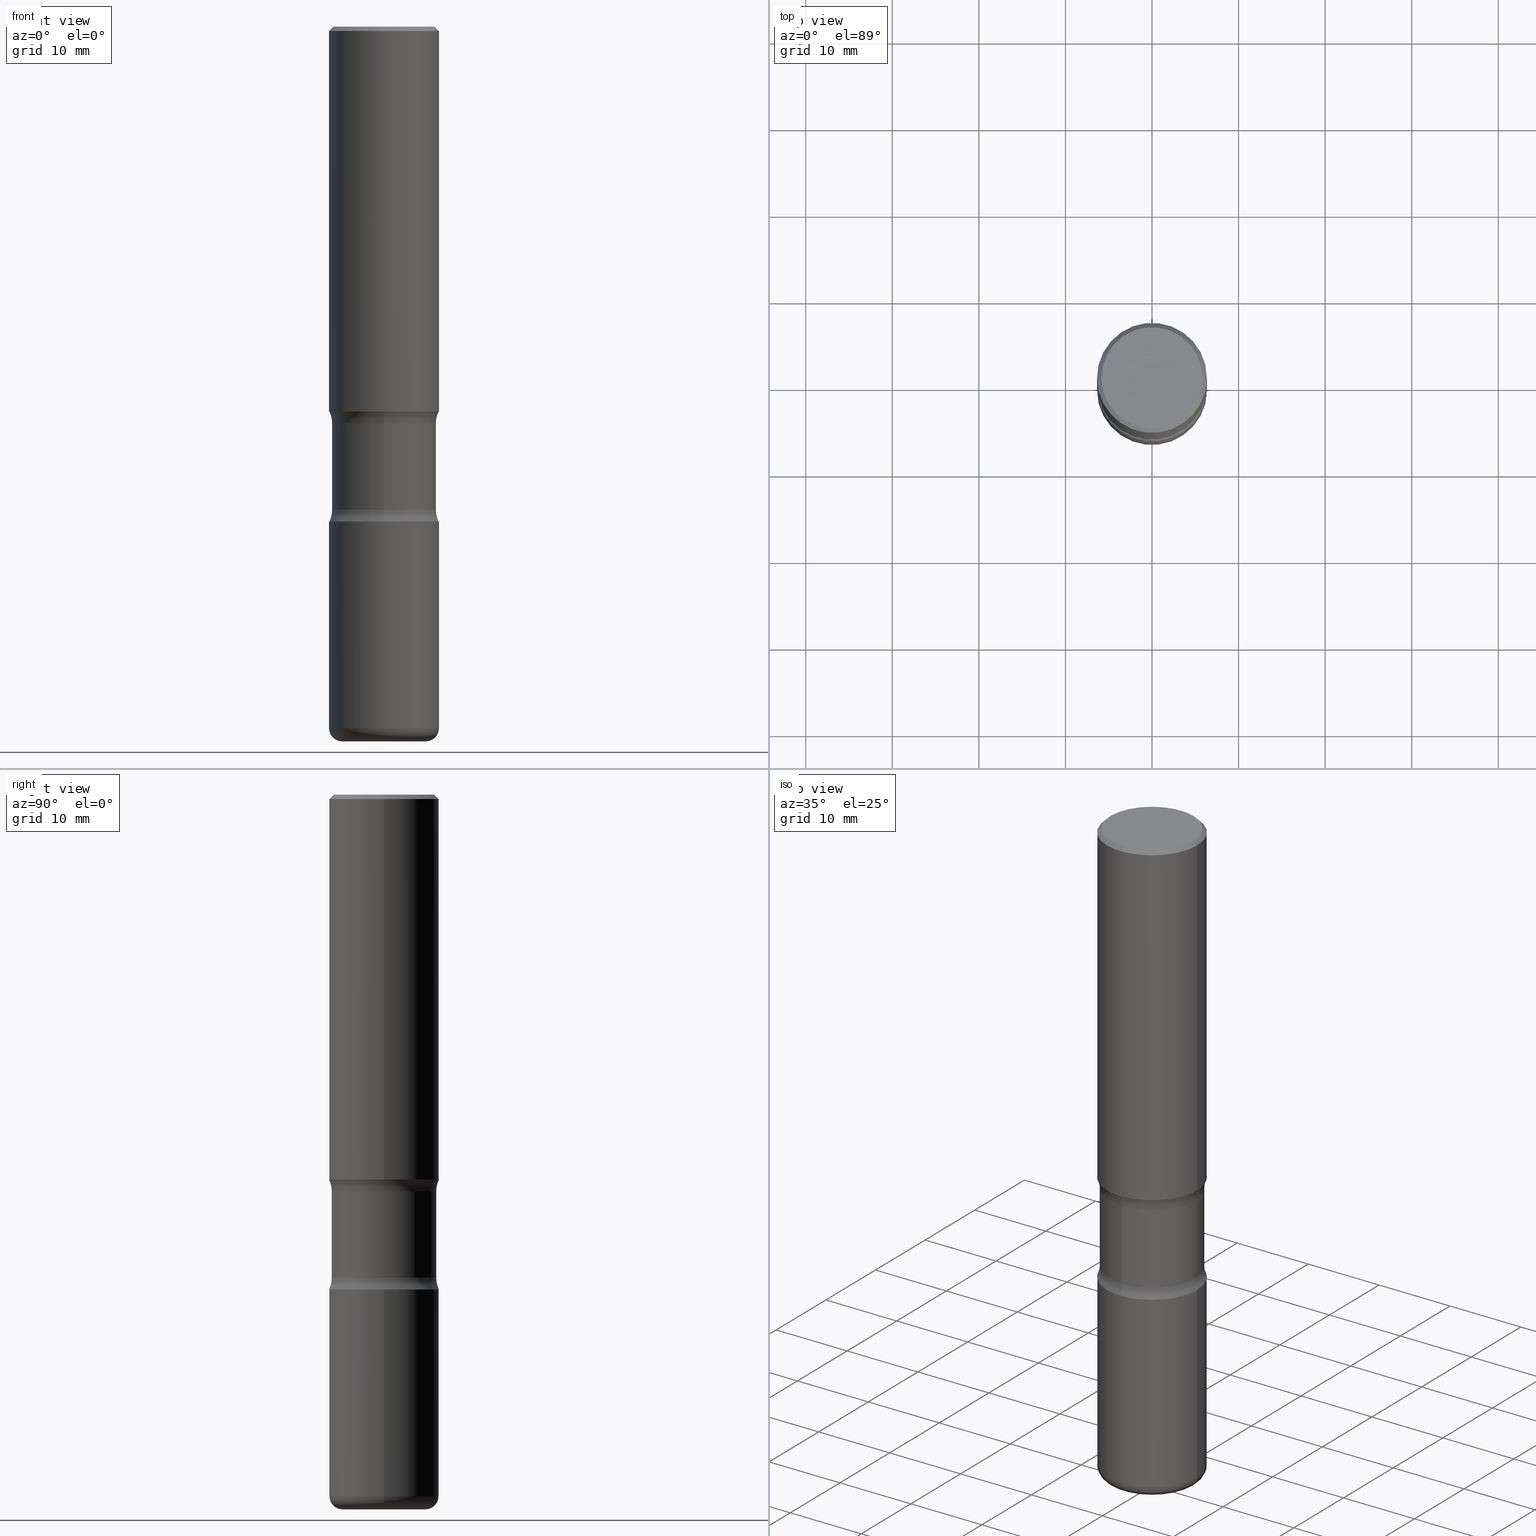
[diagram: canonical four-view strip — front | top / right | iso, engineering-drawing reading convention]
A machine part, canonical four-view strip (front | top / right | iso — engineering-drawing reading convention). The complete STEP part file that produces these views, byte-faithful:
ISO-10303-21;
HEADER;
FILE_DESCRIPTION (( 'STEP AP203' ),
    '1' );
FILE_NAME ('34101.STEP',
    '2024-03-01T23:01:16',
    ( '' ),
    ( '' ),
    'SwSTEP 2.0',
    'SolidWorks 2023',
    '' );
FILE_SCHEMA (( 'CONFIG_CONTROL_DESIGN' ));
ENDSEC;

DATA;
#1 = ORIENTED_EDGE ( 'NONE', *, *, #403, .F. ) ;
#2 = DATE_TIME_ROLE ( 'classification_date' ) ;
#3 = EDGE_CURVE ( 'NONE', #232, #192, #333, .T. ) ;
#4 = AXIS2_PLACEMENT_3D ( 'NONE', #109, #69, #482 ) ;
#5 = CIRCLE ( 'NONE', #286, 0.2300000000000004818 ) ;
#6 = ADVANCED_FACE ( 'NONE', ( #40 ), #160, .T. ) ;
#7 = EDGE_CURVE ( 'NONE', #17, #112, #257, .T. ) ;
#8 = CIRCLE ( 'NONE', #272, 0.2500000000000003886 ) ;
#9 = ORIENTED_EDGE ( 'NONE', *, *, #330, .F. ) ;
#10 = DIRECTION ( 'NONE',  ( 2.269921404058617848E-29, -3.742875210225950140E-15, -1.000000000000000000 ) ) ;
#11 = ORIENTED_EDGE ( 'NONE', *, *, #552, .F. ) ;
#12 = ORIENTED_EDGE ( 'NONE', *, *, #208, .T. ) ;
#13 = FACE_OUTER_BOUND ( 'NONE', #142, .T. ) ;
#14 = ORIENTED_EDGE ( 'NONE', *, *, #7, .T. ) ;
#15 = ORIENTED_EDGE ( 'NONE', *, *, #42, .T. ) ;
#16 = CARTESIAN_POINT ( 'NONE',  ( 1.658453635950563680E-15, 0.2374999999999881095, -3.250000000000002220 ) ) ;
#17 = VERTEX_POINT ( 'NONE', #242 ) ;
#18 = ORIENTED_EDGE ( 'NONE', *, *, #467, .T. ) ;
#19 = AXIS2_PLACEMENT_3D ( 'NONE', #542, #196, #168 ) ;
#20 = AXIS2_PLACEMENT_3D ( 'NONE', #156, #326, #283 ) ;
#21 = CC_DESIGN_DATE_AND_TIME_ASSIGNMENT ( #515, #2, ( #181 ) ) ;
#22 = DIRECTION ( 'NONE',  ( -2.445468806185136597E-29, 3.491481338843145583E-15, 1.000000000000000000 ) ) ;
#23 = ORIENTED_EDGE ( 'NONE', *, *, #557, .F. ) ;
#24 = CARTESIAN_POINT ( 'NONE',  ( 0.2500000000000005551, -1.745740669421570622E-15, 1.219044193948986471E-29 ) ) ;
#25 = EDGE_CURVE ( 'NONE', #81, #56, #500, .T. ) ;
#26 = DIRECTION ( 'NONE',  ( 6.982962677686266711E-15, 1.000000000000000000, -3.450755360418023049E-15 ) ) ;
#27 = COORDINATED_UNIVERSAL_TIME_OFFSET ( 5, 0, .BEHIND. ) ;
#28 = DIRECTION ( 'NONE',  ( 0.7071067811865464625, -7.319954787623252890E-15, -0.7071067811865485719 ) ) ;
#29 = MANIFOLD_SOLID_BREP ( 'Body-Move/Copy2[1]', #95 ) ;
#30 = EDGE_CURVE ( 'NONE', #112, #68, #37, .T. ) ;
#31 = CARTESIAN_POINT ( 'NONE',  ( 4.367344111887250941E-29, -5.984395407284106534E-15, -1.750000000000001332 ) ) ;
#32 = VECTOR ( 'NONE', #291, 39.37007874015748143 ) ;
#33 = CALENDAR_DATE ( 2024, 1, 3 ) ;
#34 = AXIS2_PLACEMENT_3D ( 'NONE', #461, #419, #176 ) ;
#35 = DIRECTION ( 'NONE',  ( 1.000000000000000000, -6.982962677686268288E-15, 4.883557194083112901E-29 ) ) ;
#36 = ORIENTED_EDGE ( 'NONE', *, *, #363, .F. ) ;
#37 = LINE ( 'NONE', #86, #217 ) ;
#38 = DATE_AND_TIME ( #33, #383 ) ;
#39 = DIRECTION ( 'NONE',  ( 1.000000000000000000, -6.982962677686267499E-15, 0.000000000000000000 ) ) ;
#40 = FACE_OUTER_BOUND ( 'NONE', #365, .T. ) ;
#41 = CALENDAR_DATE ( 2024, 1, 3 ) ;
#42 = EDGE_CURVE ( 'NONE', #402, #438, #225, .T. ) ;
#43 = CARTESIAN_POINT ( 'NONE',  ( 4.890937612370273159E-31, -6.982962677686291609E-17, -0.02000000000000000042 ) ) ;
#44 =( NAMED_UNIT ( * ) SI_UNIT ( $, .STERADIAN. ) SOLID_ANGLE_UNIT ( ) );
#45 = AXIS2_PLACEMENT_3D ( 'NONE', #413, #342, #293 ) ;
#46 = DIRECTION ( 'NONE',  ( -2.445468806185136597E-29, 3.491481338843145583E-15, 1.000000000000000000 ) ) ;
#47 = CONICAL_SURFACE ( 'NONE', #473, 0.2500000000000003886, 0.7853981633974468357 ) ;
#48 = ORIENTED_EDGE ( 'NONE', *, *, #348, .T. ) ;
#49 = EDGE_LOOP ( 'NONE', ( #391, #11, #188, #442 ) ) ;
#50 = CC_DESIGN_PERSON_AND_ORGANIZATION_ASSIGNMENT ( #505, #501, ( #170 ) ) ;
#51 = ADVANCED_FACE ( 'NONE', ( #204 ), #411, .T. ) ;
#52 = AXIS2_PLACEMENT_3D ( 'NONE', #250, #165, #507 ) ;
#53 = EDGE_CURVE ( 'NONE', #321, #106, #434, .T. ) ;
#54 = EDGE_CURVE ( 'NONE', #93, #102, #199, .T. ) ;
#55 = ORIENTED_EDGE ( 'NONE', *, *, #114, .F. ) ;
#56 = VERTEX_POINT ( 'NONE', #496 ) ;
#57 = FACE_OUTER_BOUND ( 'NONE', #444, .T. ) ;
#58 = CARTESIAN_POINT ( 'NONE',  ( 4.279570410823991847E-29, -6.110092342975509404E-15, -1.750000000000001332 ) ) ;
#59 = AXIS2_PLACEMENT_3D ( 'NONE', #479, #395, #364 ) ;
#60 = LOCAL_TIME ( 18, 1, 16.00000000000000000, #216 ) ;
#61 = ORIENTED_EDGE ( 'NONE', *, *, #557, .T. ) ;
#62 = DIRECTION ( 'NONE',  ( 2.269921404058617848E-29, -3.742875210225950140E-15, -1.000000000000000000 ) ) ;
#63 = ORIENTED_EDGE ( 'NONE', *, *, #552, .T. ) ;
#64 = EDGE_LOOP ( 'NONE', ( #15, #517 ) ) ;
#65 = CARTESIAN_POINT ( 'NONE',  ( 0.1900000000000004186, -1.267407726000061762E-14, -3.250000000000000000 ) ) ;
#66 = EDGE_LOOP ( 'NONE', ( #390, #483 ) ) ;
#67 = CC_DESIGN_DATE_AND_TIME_ASSIGNMENT ( #38, #205, ( #170 ) ) ;
#68 = VERTEX_POINT ( 'NONE', #554 ) ;
#69 = DIRECTION ( 'NONE',  ( -2.445468806185136597E-29, 3.491481338843145583E-15, 1.000000000000000000 ) ) ;
#70 = ORIENTED_EDGE ( 'NONE', *, *, #138, .T. ) ;
#71 = AXIS2_PLACEMENT_3D ( 'NONE', #172, #131, #553 ) ;
#72 = CC_DESIGN_PERSON_AND_ORGANIZATION_ASSIGNMENT ( #288, #166, ( #491 ) ) ;
#73 = CARTESIAN_POINT ( 'NONE',  ( 3.785429481638292293E-29, -1.031449620669491633E-14, -2.250000000000000888 ) ) ;
#74 = DIRECTION ( 'NONE',  ( 6.860497997771532351E-15, 1.000000000000000000, 0.000000000000000000 ) ) ;
#75 = APPLICATION_PROTOCOL_DEFINITION ( 'international standard', 'config_control_design', 1994, #265 ) ;
#76 = ADVANCED_FACE ( 'NONE', ( #335 ), #248, .F. ) ;
#77 = CARTESIAN_POINT ( 'NONE',  ( 0.1900000000000004186, -1.246458837967002773E-14, -3.189999999999999947 ) ) ;
#78 = DIRECTION ( 'NONE',  ( 2.269921404058617848E-29, -3.742875210225950140E-15, -1.000000000000000000 ) ) ;
#79 = CALENDAR_DATE ( 2024, 1, 3 ) ;
#80 = CARTESIAN_POINT ( 'NONE',  ( 5.502304813916559585E-29, -7.855833012397081604E-15, -2.250000000000001332 ) ) ;
#81 = VERTEX_POINT ( 'NONE', #408 ) ;
#82 = DIRECTION ( 'NONE',  ( 6.982962677686265922E-15, 1.000000000000000000, -3.742875210225950140E-15 ) ) ;
#83 = CIRCLE ( 'NONE', #150, 0.1900000000000004186 ) ;
#84 = COORDINATED_UNIVERSAL_TIME_OFFSET ( 5, 0, .BEHIND. ) ;
#85 = PLANE ( 'NONE',  #71 ) ;
#86 = CARTESIAN_POINT ( 'NONE',  ( -1.629368274470659150E-15, -0.2375000000000113409, -3.250000000000000000 ) ) ;
#87 = EDGE_CURVE ( 'NONE', #106, #321, #392, .T. ) ;
#88 = COORDINATED_UNIVERSAL_TIME_OFFSET ( 5, 0, .BEHIND. ) ;
#89 = DIRECTION ( 'NONE',  ( -2.445468806185136597E-29, 3.491481338843145583E-15, 1.000000000000000000 ) ) ;
#90 = CARTESIAN_POINT ( 'NONE',  ( -2.486930524192125050E-15, -0.3625000000000075384, -2.195513763205739988 ) ) ;
#91 = CARTESIAN_POINT ( 'NONE',  ( 0.000000000000000000, 0.000000000000000000, 0.000000000000000000 ) ) ;
#92 = CIRCLE ( 'NONE', #251, 0.2500000000000003886 ) ;
#93 = VERTEX_POINT ( 'NONE', #372 ) ;
#94 = PERSON_AND_ORGANIZATION_ROLE ( 'design_supplier' ) ;
#95 = CLOSED_SHELL ( 'NONE', ( #535, #263, #260, #349, #457, #514 ) ) ;
#96 = CIRCLE ( 'NONE', #519, 0.2500000000000003886 ) ;
#97 = ADVANCED_FACE ( 'NONE', ( #453 ), #128, .F. ) ;
#98 = DIRECTION ( 'NONE',  ( 1.000000000000000000, -6.982962677686267499E-15, 4.876176775795935793E-29 ) ) ;
#99 = ORIENTED_EDGE ( 'NONE', *, *, #54, .F. ) ;
#100 = FACE_OUTER_BOUND ( 'NONE', #314, .T. ) ;
#101 = EDGE_LOOP ( 'NONE', ( #18, #439, #9, #424 ) ) ;
#102 = VERTEX_POINT ( 'NONE', #414 ) ;
#103 = LINE ( 'NONE', #187, #212 ) ;
#104 = AXIS2_PLACEMENT_3D ( 'NONE', #298, #294, #82 ) ;
#105 = CIRCLE ( 'NONE', #462, 0.2500000000000003886 ) ;
#106 = VERTEX_POINT ( 'NONE', #254 ) ;
#107 = VERTEX_POINT ( 'NONE', #551 ) ;
#108 = APPROVAL ( #465, 'UNSPECIFIED' ) ;
#109 = CARTESIAN_POINT ( 'NONE',  ( 4.279570410823991847E-29, -6.110092342975509404E-15, -1.750000000000001332 ) ) ;
#110 = EDGE_CURVE ( 'NONE', #56, #115, #359, .T. ) ;
#111 = VERTEX_POINT ( 'NONE', #315 ) ;
#112 = VERTEX_POINT ( 'NONE', #397 ) ;
#113 = CARTESIAN_POINT ( 'NONE',  ( -2.486930524192133333E-15, -0.3625000000000058731, -1.804486236794259568 ) ) ;
#114 = EDGE_CURVE ( 'NONE', #192, #232, #178, .T. ) ;
#115 = VERTEX_POINT ( 'NONE', #328 ) ;
#116 = FACE_OUTER_BOUND ( 'NONE', #152, .T. ) ;
#117 = DIRECTION ( 'NONE',  ( 2.438088387897960049E-29, -3.491481338843145188E-15, -1.000000000000000000 ) ) ;
#118 = CARTESIAN_POINT ( 'NONE',  ( 7.772226217975179114E-29, -1.159870822262303332E-14, -3.250000000000001332 ) ) ;
#119 = AXIS2_PLACEMENT_3D ( 'NONE', #469, #456, #303 ) ;
#120 = APPLICATION_PROTOCOL_DEFINITION ( 'international standard', 'config_control_design', 1994, #474 ) ;
#121 = CARTESIAN_POINT ( 'NONE',  ( 7.801045491730585789E-29, -1.113782547090963453E-14, -3.189999999999999947 ) ) ;
#122 = DIRECTION ( 'NONE',  ( 6.982962677686265133E-15, 1.000000000000000000, -3.278217592397113101E-15 ) ) ;
#123 = DIRECTION ( 'NONE',  ( -0.7071067811865464625, 2.468850131082245622E-15, -0.7071067811865485719 ) ) ;
#124 = CARTESIAN_POINT ( 'NONE',  ( 4.367344111887250941E-29, -5.984395407284106534E-15, -1.750000000000001332 ) ) ;
#125 = DIRECTION ( 'NONE',  ( 1.000000000000000000, 0.000000000000000000, 0.000000000000000000 ) ) ;
#126 = FACE_OUTER_BOUND ( 'NONE', #396, .T. ) ;
#127 = ADVANCED_FACE ( 'NONE', ( #530 ), #353, .F. ) ;
#128 = PLANE ( 'NONE',  #104 ) ;
#129 = DIRECTION ( 'NONE',  ( -2.445468806185136597E-29, 3.491481338843145583E-15, 1.000000000000000000 ) ) ;
#130 = AXIS2_PLACEMENT_3D ( 'NONE', #90, #332, #296 ) ;
#131 = DIRECTION ( 'NONE',  ( 2.438088387897960049E-29, -3.491481338843145188E-15, -1.000000000000000000 ) ) ;
#132 = FACE_OUTER_BOUND ( 'NONE', #101, .T. ) ;
#133 = DIMENSIONAL_EXPONENTS ( 1.000000000000000000, 0.000000000000000000, 0.000000000000000000, 0.000000000000000000, 0.000000000000000000, 0.000000000000000000, 0.000000000000000000 ) ;
#134 = APPROVAL_STATUS ( 'not_yet_approved' ) ;
#135 = EDGE_LOOP ( 'NONE', ( #63, #153 ) ) ;
#136 = SHAPE_DEFINITION_REPRESENTATION ( #183, #336 ) ;
#137 = AXIS2_PLACEMENT_3D ( 'NONE', #200, #158, #504 ) ;
#138 = EDGE_CURVE ( 'NONE', #232, #93, #195, .T. ) ;
#139 = PERSON_AND_ORGANIZATION ( #558, #307 ) ;
#140 = AXIS2_PLACEMENT_3D ( 'NONE', #560, #371, #452 ) ;
#141 = AXIS2_PLACEMENT_3D ( 'NONE', #77, #415, #244 ) ;
#142 = EDGE_LOOP ( 'NONE', ( #55, #316 ) ) ;
#143 = ORIENTED_EDGE ( 'NONE', *, *, #253, .F. ) ;
#144 = UNCERTAINTY_MEASURE_WITH_UNIT (LENGTH_MEASURE( 1.000000000000000082E-05 ), #454, 'distance_accuracy_value', 'NONE');
#145 = DIRECTION ( 'NONE',  ( -2.445468806185136877E-29, 3.491481338843145188E-15, 1.000000000000000000 ) ) ;
#146 = ORIENTED_EDGE ( 'NONE', *, *, #154, .T. ) ;
#147 = ORIENTED_EDGE ( 'NONE', *, *, #87, .T. ) ;
#148 = EDGE_CURVE ( 'NONE', #112, #106, #509, .T. ) ;
#149 = CARTESIAN_POINT ( 'NONE',  ( -0.2500000000000005551, 1.776356839400254409E-15, -1.229733772563729108E-29 ) ) ;
#150 = AXIS2_PLACEMENT_3D ( 'NONE', #189, #22, #536 ) ;
#151 = CIRCLE ( 'NONE', #556, 0.1900000000000004186 ) ;
#152 = EDGE_LOOP ( 'NONE', ( #61, #324 ) ) ;
#153 = ORIENTED_EDGE ( 'NONE', *, *, #463, .T. ) ;
#154 = EDGE_CURVE ( 'NONE', #221, #115, #103, .T. ) ;
#155 = EDGE_LOOP ( 'NONE', ( #235, #275, #367, #355 ) ) ;
#156 = CARTESIAN_POINT ( 'NONE',  ( -0.1900000000000004186, -9.787794272965439823E-15, -3.189999999999999947 ) ) ;
#157 = CARTESIAN_POINT ( 'NONE',  ( 2.100004222806510412E-28, 7.344277184357306354E-15, -3.250000000000000444 ) ) ;
#158 = DIRECTION ( 'NONE',  ( -2.445468806185136597E-29, 3.491481338843145583E-15, 1.000000000000000000 ) ) ;
#159 = DIRECTION ( 'NONE',  ( -2.445468806185136877E-29, 3.491481338843145188E-15, 1.000000000000000000 ) ) ;
#160 = CYLINDRICAL_SURFACE ( 'NONE', #412, 0.2374999999999997113 ) ;
#161 = AXIS2_PLACEMENT_3D ( 'NONE', #416, #378, #184 ) ;
#162 = AXIS2_PLACEMENT_3D ( 'NONE', #43, #210, #389 ) ;
#163 = APPROVAL_DATE_TIME ( #459, #108 ) ;
#164 = DIRECTION ( 'NONE',  ( 1.000000000000000000, -6.982962677686266711E-15, 4.876176775795935232E-29 ) ) ;
#165 = DIRECTION ( 'NONE',  ( 2.269921404058617848E-29, -3.742875210225950140E-15, -1.000000000000000000 ) ) ;
#166 = PERSON_AND_ORGANIZATION_ROLE ( 'design_owner' ) ;
#167 = FACE_OUTER_BOUND ( 'NONE', #135, .T. ) ;
#168 = DIRECTION ( 'NONE',  ( 1.000000000000000000, -6.982962677686267499E-15, 0.000000000000000000 ) ) ;
#169 = APPROVAL_ROLE ( '' ) ;
#170 = PRODUCT_DEFINITION ( 'UNKNOWN', '', #213, #327 ) ;
#171 = EDGE_CURVE ( 'NONE', #229, #68, #317, .T. ) ;
#172 = CARTESIAN_POINT ( 'NONE',  ( 1.606081415867844617E-15, 0.2300000000000004818, -8.115777329141259230E-16 ) ) ;
#173 = DIRECTION ( 'NONE',  ( 6.982962677686265133E-15, 1.000000000000000000, -3.278217592397110735E-15 ) ) ;
#174 = CLOSED_SHELL ( 'NONE', ( #186, #423, #202, #255, #97, #127, #76, #6 ) ) ;
#175 = CYLINDRICAL_SURFACE ( 'NONE', #226, 0.2500000000000003886 ) ;
#176 = DIRECTION ( 'NONE',  ( 6.982962677686265922E-15, 1.000000000000000000, -3.742875210225950140E-15 ) ) ;
#177 = ORIENTED_EDGE ( 'NONE', *, *, #428, .T. ) ;
#178 = CIRCLE ( 'NONE', #4, 0.2500000000000006661 ) ;
#179 = CC_DESIGN_APPROVAL ( #108, ( #170 ) ) ;
#180 = AXIS2_PLACEMENT_3D ( 'NONE', #450, #375, #207 ) ;
#181 = SECURITY_CLASSIFICATION ( '', '', #425 ) ;
#182 = ORIENTED_EDGE ( 'NONE', *, *, #25, .F. ) ;
#183 = PRODUCT_DEFINITION_SHAPE ( 'NONE', 'NONE',  #170 ) ;
#184 = DIRECTION ( 'NONE',  ( 1.000000000000000000, -6.982962677686263555E-15, 0.000000000000000000 ) ) ;
#185 = ORIENTED_EDGE ( 'NONE', *, *, #510, .F. ) ;
#186 = ADVANCED_FACE ( 'NONE', ( #357 ), #360, .T. ) ;
#187 = CARTESIAN_POINT ( 'NONE',  ( 0.2500000000000003886, -1.745740669421569636E-15, 1.219044193948985910E-29 ) ) ;
#188 = ORIENTED_EDGE ( 'NONE', *, *, #267, .T. ) ;
#189 = CARTESIAN_POINT ( 'NONE',  ( 7.947773620101693940E-29, -1.134731435124022443E-14, -3.250000000000000000 ) ) ;
#190 = CIRCLE ( 'NONE', #404, 0.2374999999999995726 ) ;
#191 = VERTEX_POINT ( 'NONE', #241 ) ;
#192 = VERTEX_POINT ( 'NONE', #493 ) ;
#193 = ORIENTED_EDGE ( 'NONE', *, *, #363, .T. ) ;
#194 = DIRECTION ( 'NONE',  ( -1.000000000000000000, 6.982962677686265922E-15, -4.883557194083112340E-29 ) ) ;
#195 = LINE ( 'NONE', #149, #341 ) ;
#196 = DIRECTION ( 'NONE',  ( -2.445468806185136597E-29, 3.491481338843145583E-15, 1.000000000000000000 ) ) ;
#197 = CARTESIAN_POINT ( 'NONE',  ( 0.000000000000000000, 0.000000000000000000, 0.000000000000000000 ) ) ;
#198 = LINE ( 'NONE', #502, #522 ) ;
#199 = CIRCLE ( 'NONE', #137, 0.2500000000000003886 ) ;
#200 = CARTESIAN_POINT ( 'NONE',  ( 4.890937612370273159E-31, -6.982962677686291609E-17, -0.02000000000000000042 ) ) ;
#201 = CIRCLE ( 'NONE', #448, 0.2300000000000004818 ) ;
#202 = ADVANCED_FACE ( 'NONE', ( #407 ), #543, .F. ) ;
#203 = DIRECTION ( 'NONE',  ( 6.982962677686265133E-15, 1.000000000000000000, -3.278217592397110735E-15 ) ) ;
#204 = FACE_OUTER_BOUND ( 'NONE', #269, .T. ) ;
#205 = DATE_TIME_ROLE ( 'creation_date' ) ;
#206 = DIRECTION ( 'NONE',  ( 6.982962677686266711E-15, 1.000000000000000000, -3.450755360418023049E-15 ) ) ;
#207 = DIRECTION ( 'NONE',  ( 1.000000000000000000, -6.982962677686266711E-15, 4.876176775795935232E-29 ) ) ;
#208 = EDGE_CURVE ( 'NONE', #192, #102, #227, .T. ) ;
#209 = DATE_AND_TIME ( #41, #422 ) ;
#210 = DIRECTION ( 'NONE',  ( 2.445468806185136597E-29, -3.491481338843145583E-15, -1.000000000000000000 ) ) ;
#211 = MANIFOLD_SOLID_BREP ( 'Body-Move/Copy2[2]', #447 ) ;
#212 = VECTOR ( 'NONE', #273, 39.37007874015748143 ) ;
#213 = PRODUCT_DEFINITION_FORMATION_WITH_SPECIFIED_SOURCE ( 'ANY', '', #491, .NOT_KNOWN. ) ;
#214 = CARTESIAN_POINT ( 'NONE',  ( 4.491023587013149728E-29, -6.188330592279845103E-15, -1.804486236794261567 ) ) ;
#215 = ORIENTED_EDGE ( 'NONE', *, *, #30, .F. ) ;
#216 = COORDINATED_UNIVERSAL_TIME_OFFSET ( 5, 0, .BEHIND. ) ;
#217 = VECTOR ( 'NONE', #464, 39.37007874015748143 ) ;
#218 = AXIS2_PLACEMENT_3D ( 'NONE', #538, #194, #492 ) ;
#219 = PERSON_AND_ORGANIZATION ( #558, #307 ) ;
#220 = ORIENTED_EDGE ( 'NONE', *, *, #3, .T. ) ;
#221 = VERTEX_POINT ( 'NONE', #366 ) ;
#222 = ORIENTED_EDGE ( 'NONE', *, *, #253, .T. ) ;
#223 = CARTESIAN_POINT ( 'NONE',  ( 4.890937612370273159E-31, -6.982962677686291609E-17, -0.02000000000000000042 ) ) ;
#224 = VECTOR ( 'NONE', #10, 39.37007874015748143 ) ;
#225 = CIRCLE ( 'NONE', #475, 0.2500000000000003886 ) ;
#226 = AXIS2_PLACEMENT_3D ( 'NONE', #197, #300, #468 ) ;
#227 = LINE ( 'NONE', #24, #271 ) ;
#228 = ADVANCED_FACE ( 'NONE', ( #13 ), #319, .F. ) ;
#229 = VERTEX_POINT ( 'NONE', #440 ) ;
#230 = DIRECTION ( 'NONE',  ( 6.982962677686265922E-15, 1.000000000000000000, -4.601007147224027577E-15 ) ) ;
#231 = VERTEX_POINT ( 'NONE', #65 ) ;
#232 = VERTEX_POINT ( 'NONE', #495 ) ;
#233 = DIRECTION ( 'NONE',  ( 1.000000000000000000, -6.860497997771530774E-15, 4.837720192625000670E-29 ) ) ;
#234 = EDGE_LOOP ( 'NONE', ( #503, #264, #23, #401 ) ) ;
#235 = ORIENTED_EDGE ( 'NONE', *, *, #148, .F. ) ;
#236 = DIRECTION ( 'NONE',  ( 6.982962677686265133E-15, 1.000000000000000000, -3.450755360418019105E-15 ) ) ;
#237 = TOROIDAL_SURFACE ( 'NONE', #59, 0.3624999999999997113, 0.1250000000000000278 ) ;
#238 = CONICAL_SURFACE ( 'NONE', #162, 0.2500000000000003886, 0.7853981633974468357 ) ;
#239 = EDGE_LOOP ( 'NONE', ( #361, #528, #147, #433 ) ) ;
#240 = DIRECTION ( 'NONE',  ( 2.438088387897960049E-29, -3.491481338843145188E-15, -1.000000000000000000 ) ) ;
#241 = CARTESIAN_POINT ( 'NONE',  ( -0.2300000000000004818, 1.640996229256275675E-15, -1.707404996041300040E-17 ) ) ;
#242 = CARTESIAN_POINT ( 'NONE',  ( 1.658453635950530153E-15, 0.2374999999999934108, -1.804486236794262233 ) ) ;
#243 = PERSON_AND_ORGANIZATION ( #558, #307 ) ;
#244 = DIRECTION ( 'NONE',  ( 1.000000000000000000, -6.982962677686274599E-15, 0.000000000000000000 ) ) ;
#245 = DIRECTION ( 'NONE',  ( 6.982962677686265922E-15, 1.000000000000000000, -4.601007147224027577E-15 ) ) ;
#246 =( LENGTH_UNIT ( ) NAMED_UNIT ( * ) SI_UNIT ( $, .METRE. ) );
#247 = LINE ( 'NONE', #420, #312 ) ;
#248 = TOROIDAL_SURFACE ( 'NONE', #52, 0.3624999999999998779, 0.1250000000000000555 ) ;
#249 = EDGE_CURVE ( 'NONE', #17, #229, #400, .T. ) ;
#250 = CARTESIAN_POINT ( 'NONE',  ( 5.369060421469781115E-29, -7.665595333406135543E-15, -2.195513763205741320 ) ) ;
#251 = AXIS2_PLACEMENT_3D ( 'NONE', #511, #547, #39 ) ;
#252 = DIRECTION ( 'NONE',  ( -2.445468806185136597E-29, 3.491481338843145583E-15, 1.000000000000000000 ) ) ;
#253 = EDGE_CURVE ( 'NONE', #107, #231, #83, .T. ) ;
#254 = CARTESIAN_POINT ( 'NONE',  ( -1.715124499442841278E-15, -0.2500000000000062172, -1.750000000000000444 ) ) ;
#255 = ADVANCED_FACE ( 'NONE', ( #280 ), #237, .F. ) ;
#256 = CARTESIAN_POINT ( 'NONE',  ( 0.000000000000000000, 0.000000000000000000, 0.000000000000000000 ) ) ;
#257 = CIRCLE ( 'NONE', #471, 0.2374999999999995726 ) ;
#258 = DATE_AND_TIME ( #520, #60 ) ;
#259 = CC_DESIGN_APPROVAL ( #380, ( #181 ) ) ;
#260 = ADVANCED_FACE ( 'NONE', ( #100 ), #443, .T. ) ;
#261 = AXIS2_PLACEMENT_3D ( 'NONE', #256, #89, #164 ) ;
#262 = CIRCLE ( 'NONE', #20, 0.05999999999999994227 ) ;
#263 = ADVANCED_FACE ( 'NONE', ( #132 ), #297, .T. ) ;
#264 = ORIENTED_EDGE ( 'NONE', *, *, #25, .T. ) ;
#265 = APPLICATION_CONTEXT ( 'configuration controlled 3d designs of mechanical parts and assemblies' ) ;
#266 = ORIENTED_EDGE ( 'NONE', *, *, #308, .T. ) ;
#267 = EDGE_CURVE ( 'NONE', #191, #93, #198, .T. ) ;
#268 = DIRECTION ( 'NONE',  ( 2.269921404058617848E-29, -3.742875210225950140E-15, -1.000000000000000000 ) ) ;
#269 = EDGE_LOOP ( 'NONE', ( #489, #220, #12, #99 ) ) ;
#270 = ORIENTED_EDGE ( 'NONE', *, *, #463, .F. ) ;
#271 = VECTOR ( 'NONE', #159, 39.37007874015748143 ) ;
#272 = AXIS2_PLACEMENT_3D ( 'NONE', #80, #381, #203 ) ;
#273 = DIRECTION ( 'NONE',  ( -2.445468806185136877E-29, 3.491481338843145188E-15, 1.000000000000000000 ) ) ;
#274 = ORIENTED_EDGE ( 'NONE', *, *, #267, .F. ) ;
#275 = ORIENTED_EDGE ( 'NONE', *, *, #7, .F. ) ;
#276 = DIRECTION ( 'NONE',  ( -6.982962677686265922E-15, -1.000000000000000000, 3.742875210225950140E-15 ) ) ;
#277 = ADVANCED_FACE ( 'NONE', ( #126 ), #290, .T. ) ;
#278 = EDGE_LOOP ( 'NONE', ( #14, #537, #430, #527 ) ) ;
#279 = ORIENTED_EDGE ( 'NONE', *, *, #431, .T. ) ;
#280 = FACE_OUTER_BOUND ( 'NONE', #155, .T. ) ;
#281 = PRODUCT_RELATED_PRODUCT_CATEGORY ( 'detail', '', ( #491 ) ) ;
#282 = EDGE_LOOP ( 'NONE', ( #185, #222, #279, #399 ) ) ;
#283 = DIRECTION ( 'NONE',  ( -1.000000000000000000, 7.105427357600997914E-15, 0.000000000000000000 ) ) ;
#284 = DIRECTION ( 'NONE',  ( -1.000000000000000000, 6.982962677686265922E-15, -4.876176775795935793E-29 ) ) ;
#285 = CIRCLE ( 'NONE', #45, 0.1250000000000000278 ) ;
#286 = AXIS2_PLACEMENT_3D ( 'NONE', #470, #455, #362 ) ;
#287 = CARTESIAN_POINT ( 'NONE',  ( 5.502304813916559585E-29, -7.855833012397081604E-15, -2.250000000000001332 ) ) ;
#288 = PERSON_AND_ORGANIZATION ( #558, #307 ) ;
#289 = EDGE_CURVE ( 'NONE', #112, #17, #190, .T. ) ;
#290 = CYLINDRICAL_SURFACE ( 'NONE', #261, 0.2500000000000005551 ) ;
#291 = DIRECTION ( 'NONE',  ( -2.445468806185136877E-29, 3.491481338843145188E-15, 1.000000000000000000 ) ) ;
#292 = DIRECTION ( 'NONE',  ( -1.000000000000000000, 6.982962677686267499E-15, 0.000000000000000000 ) ) ;
#293 = DIRECTION ( 'NONE',  ( -6.982962677686265133E-15, -1.000000000000000000, 0.000000000000000000 ) ) ;
#294 = DIRECTION ( 'NONE',  ( 2.269921404058617848E-29, -3.742875210225950140E-15, -1.000000000000000000 ) ) ;
#295 = DIRECTION ( 'NONE',  ( -2.445468806185136597E-29, 3.491481338843145583E-15, 1.000000000000000000 ) ) ;
#296 = DIRECTION ( 'NONE',  ( 6.860497997771530774E-15, 1.000000000000000000, 0.000000000000000000 ) ) ;
#297 = TOROIDAL_SURFACE ( 'NONE', #497, 0.1900000000000004186, 0.05999999999999994227 ) ;
#298 = CARTESIAN_POINT ( 'NONE',  ( 4.279570410823991847E-29, -6.110092342975509404E-15, -1.750000000000001332 ) ) ;
#299 = APPROVAL_PERSON_ORGANIZATION ( #219, #380, #304 ) ;
#300 = DIRECTION ( 'NONE',  ( -2.445468806185136597E-29, 3.491481338843145583E-15, 1.000000000000000000 ) ) ;
#301 = FACE_OUTER_BOUND ( 'NONE', #49, .T. ) ;
#302 = PERSON_AND_ORGANIZATION ( #558, #307 ) ;
#303 = DIRECTION ( 'NONE',  ( 6.982962677686265133E-15, 1.000000000000000000, -3.450755360418019105E-15 ) ) ;
#304 = APPROVAL_ROLE ( '' ) ;
#305 = AXIS2_PLACEMENT_3D ( 'NONE', #539, #62, #236 ) ;
#306 = CC_DESIGN_APPROVAL ( #521, ( #213 ) ) ;
#307 = ORGANIZATION ( 'UNSPECIFIED', 'UNSPECIFIED', '' ) ;
#308 = EDGE_CURVE ( 'NONE', #111, #102, #247, .T. ) ;
#309 = CALENDAR_DATE ( 2024, 1, 3 ) ;
#310 = ADVANCED_FACE ( 'NONE', ( #167 ), #85, .F. ) ;
#311 = PERSON_AND_ORGANIZATION_ROLE ( 'classification_officer' ) ;
#312 = VECTOR ( 'NONE', #28, 39.37007874015748143 ) ;
#313 = EDGE_LOOP ( 'NONE', ( #36, #406, #352, #490 ) ) ;
#314 = EDGE_LOOP ( 'NONE', ( #494, #143 ) ) ;
#315 = CARTESIAN_POINT ( 'NONE',  ( 0.2300000000000004818, -1.681434332853602167E-15, -1.707404996039015117E-17 ) ) ;
#316 = ORIENTED_EDGE ( 'NONE', *, *, #3, .F. ) ;
#317 = CIRCLE ( 'NONE', #305, 0.2374999999999998224 ) ;
#318 = CIRCLE ( 'NONE', #130, 0.1250000000000000555 ) ;
#319 = PLANE ( 'NONE',  #533 ) ;
#320 = ORIENTED_EDGE ( 'NONE', *, *, #249, .T. ) ;
#321 = VERTEX_POINT ( 'NONE', #340 ) ;
#322 = CC_DESIGN_PERSON_AND_ORGANIZATION_ASSIGNMENT ( #387, #311, ( #181 ) ) ;
#323 = DIRECTION ( 'NONE',  ( 2.269921404058617848E-29, -3.742875210225950140E-15, -1.000000000000000000 ) ) ;
#324 = ORIENTED_EDGE ( 'NONE', *, *, #110, .T. ) ;
#325 = EDGE_LOOP ( 'NONE', ( #182, #177, #146, #441 ) ) ;
#326 = DIRECTION ( 'NONE',  ( 7.105427357601001859E-15, 1.000000000000000000, -3.491481338843145583E-15 ) ) ;
#327 = DESIGN_CONTEXT ( 'detailed design', #265, 'design' ) ;
#328 = CARTESIAN_POINT ( 'NONE',  ( 0.2500000000000003886, -9.601573681818649859E-15, -2.250000000000001332 ) ) ;
#329 = CARTESIAN_POINT ( 'NONE',  ( 4.491023587013149728E-29, -6.188330592279845103E-15, -1.804486236794261567 ) ) ;
#330 = EDGE_CURVE ( 'NONE', #221, #81, #382, .T. ) ;
#331 = DIRECTION ( 'NONE',  ( -1.000000000000000000, 6.982962677686265922E-15, -4.876176775795935793E-29 ) ) ;
#332 = DIRECTION ( 'NONE',  ( 1.000000000000000000, -6.860497997771530774E-15, 4.837720192625000670E-29 ) ) ;
#333 = CIRCLE ( 'NONE', #19, 0.2500000000000006661 ) ;
#334 = CIRCLE ( 'NONE', #141, 0.05999999999999994227 ) ;
#335 = FACE_OUTER_BOUND ( 'NONE', #313, .T. ) ;
#336 = ADVANCED_BREP_SHAPE_REPRESENTATION ( '34101', ( #29, #211, #388, #347 ), #546 ) ;
#337 = DIRECTION ( 'NONE',  ( 2.269921404058617848E-29, -3.742875210225950140E-15, -1.000000000000000000 ) ) ;
#338 = DIRECTION ( 'NONE',  ( 2.269921404058617848E-29, -3.742875210225950140E-15, -1.000000000000000000 ) ) ;
#339 = CARTESIAN_POINT ( 'NONE',  ( 4.175405657340879278E-46, -5.961372681521788801E-32, -1.707404996040164512E-17 ) ) ;
#340 = CARTESIAN_POINT ( 'NONE',  ( 1.745740669421611445E-15, 0.2499999999999942546, -1.750000000000001998 ) ) ;
#341 = VECTOR ( 'NONE', #145, 39.37007874015748143 ) ;
#342 = DIRECTION ( 'NONE',  ( -1.000000000000000000, 6.982962677686265922E-15, -4.883557194083112340E-29 ) ) ;
#343 = CARTESIAN_POINT ( 'NONE',  ( 5.502304813916559585E-29, -7.855833012397081604E-15, -2.250000000000001332 ) ) ;
#344 = PERSON_AND_ORGANIZATION_ROLE ( 'creator' ) ;
#345 = EDGE_CURVE ( 'NONE', #17, #321, #285, .T. ) ;
#346 = AXIS2_PLACEMENT_3D ( 'NONE', #124, #368, #122 ) ;
#347 = AXIS2_PLACEMENT_3D ( 'NONE', #508, #544, #125 ) ;
#348 = EDGE_CURVE ( 'NONE', #68, #229, #350, .T. ) ;
#349 = ADVANCED_FACE ( 'NONE', ( #555 ), #421, .T. ) ;
#350 = CIRCLE ( 'NONE', #119, 0.2374999999999998224 ) ;
#351 = TOROIDAL_SURFACE ( 'NONE', #34, 0.3624999999999998779, 0.1250000000000000555 ) ;
#352 = ORIENTED_EDGE ( 'NONE', *, *, #481, .T. ) ;
#353 = PLANE ( 'NONE',  #485 ) ;
#354 = ORIENTED_EDGE ( 'NONE', *, *, #437, .F. ) ;
#355 = ORIENTED_EDGE ( 'NONE', *, *, #53, .T. ) ;
#356 = CARTESIAN_POINT ( 'NONE',  ( 7.947773620101693940E-29, -1.134731435124022443E-14, -3.250000000000000000 ) ) ;
#357 = FACE_OUTER_BOUND ( 'NONE', #278, .T. ) ;
#358 = ORIENTED_EDGE ( 'NONE', *, *, #114, .T. ) ;
#359 = CIRCLE ( 'NONE', #161, 0.2500000000000003886 ) ;
#360 = CYLINDRICAL_SURFACE ( 'NONE', #386, 0.2374999999999997113 ) ;
#361 = ORIENTED_EDGE ( 'NONE', *, *, #289, .F. ) ;
#362 = DIRECTION ( 'NONE',  ( 1.000000000000000000, -6.982962677686265922E-15, 4.875813741439089685E-29 ) ) ;
#363 = EDGE_CURVE ( 'NONE', #438, #68, #318, .T. ) ;
#364 = DIRECTION ( 'NONE',  ( 6.982962677686265922E-15, 1.000000000000000000, -3.742875210225950140E-15 ) ) ;
#365 = EDGE_LOOP ( 'NONE', ( #215, #484, #320, #524 ) ) ;
#366 = CARTESIAN_POINT ( 'NONE',  ( 0.2500000000000003886, -1.288356614033120279E-14, -3.189999999999999947 ) ) ;
#367 = ORIENTED_EDGE ( 'NONE', *, *, #345, .T. ) ;
#368 = DIRECTION ( 'NONE',  ( 2.269921404058617848E-29, -3.742875210225950140E-15, -1.000000000000000000 ) ) ;
#369 = MECHANICAL_CONTEXT ( 'NONE', #474, 'mechanical' ) ;
#370 = AXIS2_PLACEMENT_3D ( 'NONE', #31, #540, #548 ) ;
#371 = DIRECTION ( 'NONE',  ( -2.445468806185136597E-29, 3.491481338843145583E-15, 1.000000000000000000 ) ) ;
#372 = CARTESIAN_POINT ( 'NONE',  ( -0.2500000000000003886, 1.675911042644706732E-15, -0.02000000000000000042 ) ) ;
#373 = FACE_OUTER_BOUND ( 'NONE', #234, .T. ) ;
#374 = FACE_OUTER_BOUND ( 'NONE', #478, .T. ) ;
#375 = DIRECTION ( 'NONE',  ( -2.445468806185136597E-29, 3.491481338843145583E-15, 1.000000000000000000 ) ) ;
#376 = APPROVAL_STATUS ( 'not_yet_approved' ) ;
#377 = CARTESIAN_POINT ( 'NONE',  ( -1.715124499442830037E-15, -0.2500000000000082712, -2.250000000000000444 ) ) ;
#378 = DIRECTION ( 'NONE',  ( -2.445468806185136597E-29, 3.491481338843145583E-15, 1.000000000000000000 ) ) ;
#379 = APPROVAL_DATE_TIME ( #209, #521 ) ;
#380 = APPROVAL ( #134, 'UNSPECIFIED' ) ;
#381 = DIRECTION ( 'NONE',  ( 2.269921404058617848E-29, -3.742875210225950140E-15, -1.000000000000000000 ) ) ;
#382 = CIRCLE ( 'NONE', #140, 0.2500000000000003886 ) ;
#383 = LOCAL_TIME ( 18, 1, 16.00000000000000000, #84 ) ;
#384 = DIRECTION ( 'NONE',  ( 1.000000000000000000, -6.982962677686263555E-15, 0.000000000000000000 ) ) ;
#385 = CARTESIAN_POINT ( 'NONE',  ( 7.801045491730585789E-29, -1.113782547090963453E-14, -3.189999999999999947 ) ) ;
#386 = AXIS2_PLACEMENT_3D ( 'NONE', #436, #323, #230 ) ;
#387 = PERSON_AND_ORGANIZATION ( #558, #307 ) ;
#388 = MANIFOLD_SOLID_BREP ( 'Body-Move/Copy2[4]', #174 ) ;
#389 = DIRECTION ( 'NONE',  ( -1.000000000000000000, 6.982962677686267499E-15, 0.000000000000000000 ) ) ;
#390 = ORIENTED_EDGE ( 'NONE', *, *, #53, .F. ) ;
#391 = ORIENTED_EDGE ( 'NONE', *, *, #308, .F. ) ;
#392 = CIRCLE ( 'NONE', #346, 0.2500000000000002220 ) ;
#393 = DIRECTION ( 'NONE',  ( 2.445468806185136597E-29, -3.491481338843145583E-15, -1.000000000000000000 ) ) ;
#394 = AXIS2_PLACEMENT_3D ( 'NONE', #91, #426, #98 ) ;
#395 = DIRECTION ( 'NONE',  ( 2.269921404058617848E-29, -3.742875210225950140E-15, -1.000000000000000000 ) ) ;
#396 = EDGE_LOOP ( 'NONE', ( #358, #70, #354, #480 ) ) ;
#397 = CARTESIAN_POINT ( 'NONE',  ( -1.672246386956765893E-15, -0.2375000000000057621, -1.804486236794260678 ) ) ;
#398 = CC_DESIGN_PERSON_AND_ORGANIZATION_ASSIGNMENT ( #139, #94, ( #213 ) ) ;
#399 = ORIENTED_EDGE ( 'NONE', *, *, #428, .F. ) ;
#400 = LINE ( 'NONE', #16, #224 ) ;
#401 = ORIENTED_EDGE ( 'NONE', *, *, #154, .F. ) ;
#402 = VERTEX_POINT ( 'NONE', #499 ) ;
#403 = EDGE_CURVE ( 'NONE', #438, #402, #8, .T. ) ;
#404 = AXIS2_PLACEMENT_3D ( 'NONE', #214, #550, #206 ) ;
#405 = CARTESIAN_POINT ( 'NONE',  ( 4.460505784722945109E-29, -6.232033822124849427E-15, -1.804486236794260900 ) ) ;
#406 = ORIENTED_EDGE ( 'NONE', *, *, #42, .F. ) ;
#407 = FACE_OUTER_BOUND ( 'NONE', #239, .T. ) ;
#408 = CARTESIAN_POINT ( 'NONE',  ( -0.2500000000000003886, -9.361468631509380911E-15, -3.189999999999999947 ) ) ;
#409 = APPROVAL_ROLE ( '' ) ;
#410 = CARTESIAN_POINT ( 'NONE',  ( 7.801045491730585789E-29, -1.113782547090963453E-14, -3.189999999999999947 ) ) ;
#411 = CYLINDRICAL_SURFACE ( 'NONE', #180, 0.2500000000000005551 ) ;
#412 = AXIS2_PLACEMENT_3D ( 'NONE', #118, #338, #245 ) ;
#413 = CARTESIAN_POINT ( 'NONE',  ( 2.531323970661313492E-15, 0.3624999999999934941, -1.804486236794262233 ) ) ;
#414 = CARTESIAN_POINT ( 'NONE',  ( 0.2500000000000003886, -1.784954126219748555E-15, -0.02000000000000000042 ) ) ;
#415 = DIRECTION ( 'NONE',  ( -6.982962677686266711E-15, -1.000000000000000000, 3.491481338843145583E-15 ) ) ;
#416 = CARTESIAN_POINT ( 'NONE',  ( 5.502304813916559585E-29, -7.855833012397081604E-15, -2.250000000000001332 ) ) ;
#417 = CC_DESIGN_PERSON_AND_ORGANIZATION_ASSIGNMENT ( #302, #344, ( #213 ) ) ;
#418 = PERSON_AND_ORGANIZATION ( #558, #307 ) ;
#419 = DIRECTION ( 'NONE',  ( 2.269921404058617848E-29, -3.742875210225950140E-15, -1.000000000000000000 ) ) ;
#420 = CARTESIAN_POINT ( 'NONE',  ( 0.2500000000000003886, -1.784954126219748555E-15, -0.02000000000000000042 ) ) ;
#421 = TOROIDAL_SURFACE ( 'NONE', #486, 0.1900000000000004186, 0.05999999999999994227 ) ;
#422 = LOCAL_TIME ( 18, 1, 16.00000000000000000, #88 ) ;
#423 = ADVANCED_FACE ( 'NONE', ( #374 ), #351, .F. ) ;
#424 = ORIENTED_EDGE ( 'NONE', *, *, #431, .F. ) ;
#425 = SECURITY_CLASSIFICATION_LEVEL ( 'unclassified' ) ;
#426 = DIRECTION ( 'NONE',  ( -2.445468806185136597E-29, 3.491481338843145583E-15, 1.000000000000000000 ) ) ;
#427 = FACE_OUTER_BOUND ( 'NONE', #325, .T. ) ;
#428 = EDGE_CURVE ( 'NONE', #81, #221, #105, .T. ) ;
#429 = COORDINATED_UNIVERSAL_TIME_OFFSET ( 5, 0, .BEHIND. ) ;
#430 = ORIENTED_EDGE ( 'NONE', *, *, #171, .F. ) ;
#431 = EDGE_CURVE ( 'NONE', #231, #221, #334, .T. ) ;
#432 = CARTESIAN_POINT ( 'NONE',  ( 3.785429481638292293E-29, -1.031449620669491633E-14, -2.250000000000000888 ) ) ;
#433 = ORIENTED_EDGE ( 'NONE', *, *, #345, .F. ) ;
#434 = CIRCLE ( 'NONE', #370, 0.2500000000000002220 ) ;
#435 = CIRCLE ( 'NONE', #218, 0.1250000000000000555 ) ;
#436 = CARTESIAN_POINT ( 'NONE',  ( 7.772226217975179114E-29, -1.159870822262303332E-14, -3.250000000000001332 ) ) ;
#437 = EDGE_CURVE ( 'NONE', #102, #93, #92, .T. ) ;
#438 = VERTEX_POINT ( 'NONE', #377 ) ;
#439 = ORIENTED_EDGE ( 'NONE', *, *, #510, .T. ) ;
#440 = CARTESIAN_POINT ( 'NONE',  ( 1.658453635950540606E-15, 0.2374999999999921618, -2.195513763205742208 ) ) ;
#441 = ORIENTED_EDGE ( 'NONE', *, *, #110, .F. ) ;
#442 = ORIENTED_EDGE ( 'NONE', *, *, #54, .T. ) ;
#443 = PLANE ( 'NONE',  #460 ) ;
#444 = EDGE_LOOP ( 'NONE', ( #270, #266, #531, #274 ) ) ;
#445 = PLANE ( 'NONE',  #534 ) ;
#446 = ADVANCED_FACE ( 'NONE', ( #301 ), #238, .T. ) ;
#447 = CLOSED_SHELL ( 'NONE', ( #277, #525, #446, #310, #228, #51 ) ) ;
#448 = AXIS2_PLACEMENT_3D ( 'NONE', #339, #129, #559 ) ;
#449 = DIRECTION ( 'NONE',  ( 6.982962677686265922E-15, 1.000000000000000000, -3.742875210225950140E-15 ) ) ;
#450 = CARTESIAN_POINT ( 'NONE',  ( 0.000000000000000000, 0.000000000000000000, 0.000000000000000000 ) ) ;
#451 =( NAMED_UNIT ( * ) PLANE_ANGLE_UNIT ( ) SI_UNIT ( $, .RADIAN. ) );
#452 = DIRECTION ( 'NONE',  ( 1.000000000000000000, -6.982962677686267499E-15, 0.000000000000000000 ) ) ;
#453 = FACE_OUTER_BOUND ( 'NONE', #66, .T. ) ;
#454 =( CONVERSION_BASED_UNIT ( 'INCH', #549 ) LENGTH_UNIT ( ) NAMED_UNIT ( #133 ) );
#455 = DIRECTION ( 'NONE',  ( -2.445468806185136597E-29, 3.491481338843145583E-15, 1.000000000000000000 ) ) ;
#456 = DIRECTION ( 'NONE',  ( 2.269921404058617848E-29, -3.742875210225950140E-15, -1.000000000000000000 ) ) ;
#457 = ADVANCED_FACE ( 'NONE', ( #427 ), #516, .T. ) ;
#458 = CARTESIAN_POINT ( 'NONE',  ( -0.2500000000000003886, 1.776356839400253226E-15, -1.229733772563728407E-29 ) ) ;
#459 = DATE_AND_TIME ( #79, #545 ) ;
#460 = AXIS2_PLACEMENT_3D ( 'NONE', #157, #117, #284 ) ;
#461 = CARTESIAN_POINT ( 'NONE',  ( 5.369060421469781115E-29, -7.665595333406135543E-15, -2.195513763205741320 ) ) ;
#462 = AXIS2_PLACEMENT_3D ( 'NONE', #121, #252, #513 ) ;
#463 = EDGE_CURVE ( 'NONE', #111, #191, #5, .T. ) ;
#464 = DIRECTION ( 'NONE',  ( 2.269921404058617848E-29, -3.742875210225950140E-15, -1.000000000000000000 ) ) ;
#465 = APPROVAL_STATUS ( 'not_yet_approved' ) ;
#466 = DIRECTION ( 'NONE',  ( -2.445468806185136597E-29, 3.491481338843145583E-15, 1.000000000000000000 ) ) ;
#467 = EDGE_CURVE ( 'NONE', #231, #107, #151, .T. ) ;
#468 = DIRECTION ( 'NONE',  ( 1.000000000000000000, -6.982962677686267499E-15, 4.876176775795935793E-29 ) ) ;
#469 = CARTESIAN_POINT ( 'NONE',  ( 5.378625338790664161E-29, -7.651897827401345401E-15, -2.195513763205741320 ) ) ;
#470 = CARTESIAN_POINT ( 'NONE',  ( 4.175405657340879278E-46, -5.961372681521788801E-32, -1.707404996040164512E-17 ) ) ;
#471 = AXIS2_PLACEMENT_3D ( 'NONE', #329, #78, #26 ) ;
#472 = AXIS2_PLACEMENT_3D ( 'NONE', #113, #233, #74 ) ;
#473 = AXIS2_PLACEMENT_3D ( 'NONE', #223, #393, #292 ) ;
#474 = APPLICATION_CONTEXT ( 'configuration controlled 3d designs of mechanical parts and assemblies' ) ;
#475 = AXIS2_PLACEMENT_3D ( 'NONE', #287, #337, #173 ) ;
#476 = APPROVAL_PERSON_ORGANIZATION ( #243, #108, #409 ) ;
#477 = APPROVAL_DATE_TIME ( #258, #380 ) ;
#478 = EDGE_LOOP ( 'NONE', ( #1, #193, #48, #532 ) ) ;
#479 = CARTESIAN_POINT ( 'NONE',  ( 4.460505784722945109E-29, -6.232033822124849427E-15, -1.804486236794260900 ) ) ;
#480 = ORIENTED_EDGE ( 'NONE', *, *, #208, .F. ) ;
#481 = EDGE_CURVE ( 'NONE', #402, #229, #435, .T. ) ;
#482 = DIRECTION ( 'NONE',  ( 1.000000000000000000, -6.982962677686267499E-15, 0.000000000000000000 ) ) ;
#483 = ORIENTED_EDGE ( 'NONE', *, *, #87, .F. ) ;
#484 = ORIENTED_EDGE ( 'NONE', *, *, #289, .T. ) ;
#485 = AXIS2_PLACEMENT_3D ( 'NONE', #432, #526, #276 ) ;
#486 = AXIS2_PLACEMENT_3D ( 'NONE', #410, #46, #35 ) ;
#487 = DIRECTION ( 'NONE',  ( 1.000000000000000000, -6.982962677686266711E-15, 0.000000000000000000 ) ) ;
#488 = DIRECTION ( 'NONE',  ( 1.000000000000000000, -6.982962677686265922E-15, 4.876176775795935793E-29 ) ) ;
#489 = ORIENTED_EDGE ( 'NONE', *, *, #138, .F. ) ;
#490 = ORIENTED_EDGE ( 'NONE', *, *, #171, .T. ) ;
#491 = PRODUCT ( '34101', '34101', '', ( #369 ) ) ;
#492 = DIRECTION ( 'NONE',  ( -6.982962677686267499E-15, -1.000000000000000000, 0.000000000000000000 ) ) ;
#493 = CARTESIAN_POINT ( 'NONE',  ( 0.2500000000000006661, -7.855833012397080026E-15, -1.750000000000001332 ) ) ;
#494 = ORIENTED_EDGE ( 'NONE', *, *, #467, .F. ) ;
#495 = CARTESIAN_POINT ( 'NONE',  ( -0.2500000000000006661, -1.313604145475929576E-15, -1.750000000000001332 ) ) ;
#496 = CARTESIAN_POINT ( 'NONE',  ( -0.2500000000000003886, -7.720472402253104447E-15, -2.250000000000001332 ) ) ;
#497 = AXIS2_PLACEMENT_3D ( 'NONE', #385, #466, #506 ) ;
#498 = LOCAL_TIME ( 18, 1, 16.00000000000000000, #429 ) ;
#499 = CARTESIAN_POINT ( 'NONE',  ( 1.745740669421624462E-15, 0.2499999999999925615, -2.250000000000001776 ) ) ;
#500 = LINE ( 'NONE', #458, #32 ) ;
#501 = PERSON_AND_ORGANIZATION_ROLE ( 'creator' ) ;
#502 = CARTESIAN_POINT ( 'NONE',  ( -0.2500000000000003886, 1.675911042644706732E-15, -0.02000000000000000042 ) ) ;
#503 = ORIENTED_EDGE ( 'NONE', *, *, #330, .T. ) ;
#504 = DIRECTION ( 'NONE',  ( 1.000000000000000000, -6.982962677686267499E-15, 0.000000000000000000 ) ) ;
#505 = PERSON_AND_ORGANIZATION ( #558, #307 ) ;
#506 = DIRECTION ( 'NONE',  ( 1.000000000000000000, -6.982962677686268288E-15, 4.883557194083112901E-29 ) ) ;
#507 = DIRECTION ( 'NONE',  ( 6.982962677686265922E-15, 1.000000000000000000, -3.742875210225950140E-15 ) ) ;
#508 = CARTESIAN_POINT ( 'NONE',  ( 0.000000000000000000, 0.000000000000000000, 0.000000000000000000 ) ) ;
#509 = CIRCLE ( 'NONE', #472, 0.1250000000000000278 ) ;
#510 = EDGE_CURVE ( 'NONE', #107, #81, #262, .T. ) ;
#511 = CARTESIAN_POINT ( 'NONE',  ( 4.890937612370273159E-31, -6.982962677686291609E-17, -0.02000000000000000042 ) ) ;
#512 = CC_DESIGN_SECURITY_CLASSIFICATION ( #181, ( #213 ) ) ;
#513 = DIRECTION ( 'NONE',  ( 1.000000000000000000, -6.982962677686267499E-15, 0.000000000000000000 ) ) ;
#514 = ADVANCED_FACE ( 'NONE', ( #116 ), #445, .F. ) ;
#515 = DATE_AND_TIME ( #309, #498 ) ;
#516 = CYLINDRICAL_SURFACE ( 'NONE', #394, 0.2500000000000003886 ) ;
#517 = ORIENTED_EDGE ( 'NONE', *, *, #403, .T. ) ;
#518 = AXIS2_PLACEMENT_3D ( 'NONE', #405, #268, #449 ) ;
#519 = AXIS2_PLACEMENT_3D ( 'NONE', #343, #295, #384 ) ;
#520 = CALENDAR_DATE ( 2024, 1, 3 ) ;
#521 = APPROVAL ( #376, 'UNSPECIFIED' ) ;
#522 = VECTOR ( 'NONE', #123, 39.37007874015748143 ) ;
#523 = APPROVAL_PERSON_ORGANIZATION ( #418, #521, #169 ) ;
#524 = ORIENTED_EDGE ( 'NONE', *, *, #348, .F. ) ;
#525 = ADVANCED_FACE ( 'NONE', ( #57 ), #47, .T. ) ;
#526 = DIRECTION ( 'NONE',  ( -2.269921404058617848E-29, 3.742875210225950140E-15, 1.000000000000000000 ) ) ;
#527 = ORIENTED_EDGE ( 'NONE', *, *, #249, .F. ) ;
#528 = ORIENTED_EDGE ( 'NONE', *, *, #148, .T. ) ;
#529 = DIRECTION ( 'NONE',  ( -2.445468806185136597E-29, 3.491481338843145583E-15, 1.000000000000000000 ) ) ;
#530 = FACE_OUTER_BOUND ( 'NONE', #64, .T. ) ;
#531 = ORIENTED_EDGE ( 'NONE', *, *, #437, .T. ) ;
#532 = ORIENTED_EDGE ( 'NONE', *, *, #481, .F. ) ;
#533 = AXIS2_PLACEMENT_3D ( 'NONE', #58, #541, #488 ) ;
#534 = AXIS2_PLACEMENT_3D ( 'NONE', #73, #240, #331 ) ;
#535 = ADVANCED_FACE ( 'NONE', ( #373 ), #175, .T. ) ;
#536 = DIRECTION ( 'NONE',  ( 1.000000000000000000, -6.982962677686266711E-15, 0.000000000000000000 ) ) ;
#537 = ORIENTED_EDGE ( 'NONE', *, *, #30, .T. ) ;
#538 = CARTESIAN_POINT ( 'NONE',  ( 2.531323970661324142E-15, 0.3624999999999922173, -2.195513763205742652 ) ) ;
#539 = CARTESIAN_POINT ( 'NONE',  ( 5.378625338790664161E-29, -7.651897827401345401E-15, -2.195513763205741320 ) ) ;
#540 = DIRECTION ( 'NONE',  ( 2.269921404058617848E-29, -3.742875210225950140E-15, -1.000000000000000000 ) ) ;
#541 = DIRECTION ( 'NONE',  ( -2.438088387897960049E-29, 3.491481338843145188E-15, 1.000000000000000000 ) ) ;
#542 = CARTESIAN_POINT ( 'NONE',  ( 4.279570410823991847E-29, -6.110092342975509404E-15, -1.750000000000001332 ) ) ;
#543 = TOROIDAL_SURFACE ( 'NONE', #518, 0.3624999999999997113, 0.1250000000000000278 ) ;
#544 = DIRECTION ( 'NONE',  ( 0.000000000000000000, 0.000000000000000000, 1.000000000000000000 ) ) ;
#545 = LOCAL_TIME ( 18, 1, 16.00000000000000000, #27 ) ;
#546 =( GEOMETRIC_REPRESENTATION_CONTEXT ( 3 ) GLOBAL_UNCERTAINTY_ASSIGNED_CONTEXT ( ( #144 ) ) GLOBAL_UNIT_ASSIGNED_CONTEXT ( ( #454, #451, #44 ) ) REPRESENTATION_CONTEXT ( 'NONE', 'WORKASPACE' ) );
#547 = DIRECTION ( 'NONE',  ( -2.445468806185136597E-29, 3.491481338843145583E-15, 1.000000000000000000 ) ) ;
#548 = DIRECTION ( 'NONE',  ( 6.982962677686265133E-15, 1.000000000000000000, -3.278217592397113101E-15 ) ) ;
#549 = LENGTH_MEASURE_WITH_UNIT ( LENGTH_MEASURE( 0.02539999999999999897 ), #246 );
#550 = DIRECTION ( 'NONE',  ( 2.269921404058617848E-29, -3.742875210225950140E-15, -1.000000000000000000 ) ) ;
#551 = CARTESIAN_POINT ( 'NONE',  ( -0.1900000000000004186, -9.679375892402704525E-15, -3.250000000000000000 ) ) ;
#552 = EDGE_CURVE ( 'NONE', #191, #111, #201, .T. ) ;
#553 = DIRECTION ( 'NONE',  ( -1.000000000000000000, 6.982962677686265922E-15, -4.876176775795935793E-29 ) ) ;
#554 = CARTESIAN_POINT ( 'NONE',  ( -1.672246386956757412E-15, -0.2375000000000074829, -2.195513763205740432 ) ) ;
#555 = FACE_OUTER_BOUND ( 'NONE', #282, .T. ) ;
#556 = AXIS2_PLACEMENT_3D ( 'NONE', #356, #529, #487 ) ;
#557 = EDGE_CURVE ( 'NONE', #115, #56, #96, .T. ) ;
#558 = PERSON ( 'UNSPECIFIED', 'UNSPECIFIED', 'UNSPECIFIED', ('UNSPECIFIED'), ('UNSPECIFIED'), ('UNSPECIFIED') ) ;
#559 = DIRECTION ( 'NONE',  ( 1.000000000000000000, -6.982962677686265922E-15, 4.875813741439089685E-29 ) ) ;
#560 = CARTESIAN_POINT ( 'NONE',  ( 7.801045491730585789E-29, -1.113782547090963453E-14, -3.189999999999999947 ) ) ;
ENDSEC;
END-ISO-10303-21;
